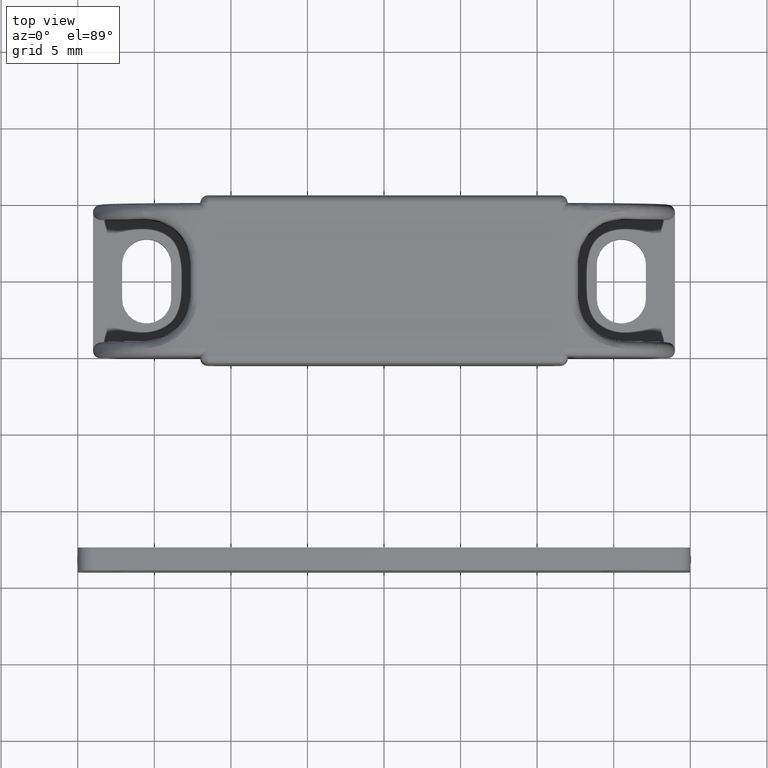
[diagram: clean part render]
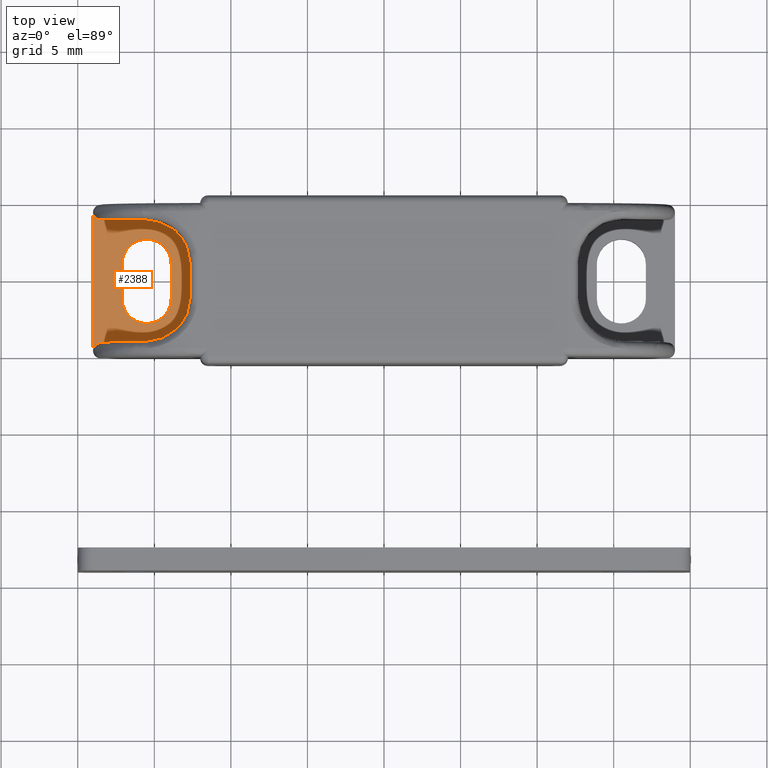
[diagram: same view with one face highlighted and labeled with its STEP entity id]
A machine part, top view. The second image highlights one B-rep face of the part: STEP entity #2388.
In plain terms, the highlighted face is a freeform B-spline surface patch.
Its self-contained STEP definition (entity closure, byte-faithful):
#1980=CARTESIAN_POINT('',(-17.100000000000001,-1.150000000006912,2.0));
#1981=VERTEX_POINT('',#1980);
#1987=CARTESIAN_POINT('',(-13.899999999999860,-1.150000000006514,2.0));
#1988=VERTEX_POINT('',#1987);
#1989=CARTESIAN_POINT('',(-17.100000000000001,-1.150000000006912,2.0));
#1990=CARTESIAN_POINT('',(-17.100000000000009,-2.073760430710401,2.000000000000000));
#1991=CARTESIAN_POINT('',(-16.299999999999880,-2.535640646062080,2.0));
#1992=CARTESIAN_POINT('',(-15.499999999999774,-2.997520861413759,2.000000000000000));
#1993=CARTESIAN_POINT('',(-14.699999999999770,-2.535640646061881,2.0));
#1994=CARTESIAN_POINT('',(-13.899999999999775,-2.073760430710004,2.000000000000000));
#1995=CARTESIAN_POINT('',(-13.899999999999860,-1.150000000006514,2.0));
#2003=(BOUNDED_CURVE()B_SPLINE_CURVE(2,(#1989,#1990,#1991,#1992,#1993,#1994,#1995),.UNSPECIFIED.,.F.,.U.)B_SPLINE_CURVE_WITH_KNOTS((3,2,2,3),(0.0,0.333333333333333,0.666666666666667,1.0),.UNSPECIFIED.)CURVE()GEOMETRIC_REPRESENTATION_ITEM()RATIONAL_B_SPLINE_CURVE((1.0,0.866025403784418,1.0,0.866025403784418,1.0,0.866025403784418,1.0))REPRESENTATION_ITEM(''));
#2004=EDGE_CURVE('',#1981,#1988,#2003,.T.);
#2027=CARTESIAN_POINT('',(-13.900000000001020,1.149999999992520,2.0));
#2028=VERTEX_POINT('',#2027);
#2029=CARTESIAN_POINT('',(-13.900000000001020,1.149999999992520,2.0));
#2030=CARTESIAN_POINT('',(-13.899999999999860,-1.150000000006514,2.0));
#2031=QUASI_UNIFORM_CURVE('',1,(#2029,#2030),.UNSPECIFIED.,.F.,.U.);
#2032=EDGE_CURVE('',#2028,#1988,#2031,.T.);
#2078=CARTESIAN_POINT('',(-17.100000000001000,1.149999999991066,2.0));
#2079=VERTEX_POINT('',#2078);
#2080=CARTESIAN_POINT('',(-13.900000000001000,1.149999999992520,2.0));
#2081=CARTESIAN_POINT('',(-13.900000000001727,2.749999999992156,2.0));
#2082=CARTESIAN_POINT('',(-15.500000000001361,2.749999999991792,2.0));
#2083=CARTESIAN_POINT('',(-17.100000000001007,2.749999999991429,2.0));
#2084=CARTESIAN_POINT('',(-17.100000000001000,1.149999999991066,2.0));
#2092=(BOUNDED_CURVE()B_SPLINE_CURVE(2,(#2080,#2081,#2082,#2083,#2084),.UNSPECIFIED.,.F.,.U.)B_SPLINE_CURVE_WITH_KNOTS((3,2,3),(0.0,0.500000000000000,1.0),.UNSPECIFIED.)CURVE()GEOMETRIC_REPRESENTATION_ITEM()RATIONAL_B_SPLINE_CURVE((1.0,0.707106781186628,1.0,0.707106781186628,1.0))REPRESENTATION_ITEM(''));
#2093=EDGE_CURVE('',#2028,#2079,#2092,.T.);
#2114=CARTESIAN_POINT('',(-17.100000000000001,-1.150000000006912,2.0));
#2115=CARTESIAN_POINT('',(-17.100000000001000,1.149999999991066,2.0));
#2116=QUASI_UNIFORM_CURVE('',1,(#2114,#2115),.UNSPECIFIED.,.F.,.U.);
#2117=EDGE_CURVE('',#1981,#2079,#2116,.T.);
#2287=CARTESIAN_POINT('',(-19.317182510378171,4.949549982556198,2.0));
#2288=CARTESIAN_POINT('',(-12.332816865133321,4.949549982556198,2.0));
#2289=CARTESIAN_POINT('',(-19.317182510378171,-4.949550223955009,2.0));
#2290=CARTESIAN_POINT('',(-12.332816865133321,-4.949550223955009,2.0));
#2291=B_SPLINE_SURFACE_WITH_KNOTS('',1,1,((#2287,#2289),(#2288,#2290)),.UNSPECIFIED.,.F.,.F.,.U.,(2,2),(2,2),(0.0,6.984365645244848),(0.0,9.899100206511207),.UNSPECIFIED.);
#2292=CARTESIAN_POINT('',(-19.0,4.499999999999949,2.0));
#2293=VERTEX_POINT('',#2292);
#2294=CARTESIAN_POINT('',(-19.0,-4.499999999999949,2.0));
#2295=VERTEX_POINT('',#2294);
#2296=CARTESIAN_POINT('',(-19.0,4.499999999999949,2.0));
#2297=CARTESIAN_POINT('',(-19.0,-4.499999999999949,2.0));
#2298=QUASI_UNIFORM_CURVE('',1,(#2296,#2297),.UNSPECIFIED.,.F.,.U.);
#2299=EDGE_CURVE('',#2293,#2295,#2298,.T.);
#2300=ORIENTED_EDGE('',*,*,#2299,.T.);
#2301=CARTESIAN_POINT('',(-18.500000000000000,-4.0,2.0));
#2302=VERTEX_POINT('',#2301);
#2303=CARTESIAN_POINT('',(-19.0,-4.499999999999949,2.0));
#2304=CARTESIAN_POINT('',(-18.999999999999993,-3.999999999999950,2.000000000000000));
#2305=CARTESIAN_POINT('',(-18.500000000000000,-3.999999999999950,2.0));
#2313=(BOUNDED_CURVE()B_SPLINE_CURVE(2,(#2303,#2304,#2305),.UNSPECIFIED.,.F.,.U.)CURVE()GEOMETRIC_REPRESENTATION_ITEM()QUASI_UNIFORM_CURVE()RATIONAL_B_SPLINE_CURVE((1.0,0.707106781186548,1.0))REPRESENTATION_ITEM(''));
#2314=EDGE_CURVE('',#2295,#2302,#2313,.T.);
#2315=ORIENTED_EDGE('',*,*,#2314,.T.);
#2316=CARTESIAN_POINT('',(-15.500000000019799,-4.0,2.0));
#2317=VERTEX_POINT('',#2316);
#2318=CARTESIAN_POINT('',(-15.500000000019799,-4.0,2.0));
#2319=CARTESIAN_POINT('',(-18.500000000000000,-4.0,2.0));
#2320=QUASI_UNIFORM_CURVE('',1,(#2318,#2319),.UNSPECIFIED.,.F.,.U.);
#2321=EDGE_CURVE('',#2317,#2302,#2320,.T.);
#2322=ORIENTED_EDGE('',*,*,#2321,.F.);
#2323=CARTESIAN_POINT('',(-12.650000000019199,-1.149999999999410,2.0));
#2324=VERTEX_POINT('',#2323);
#2325=CARTESIAN_POINT('',(-15.500000000019799,-4.000000000000030,2.0));
#2326=CARTESIAN_POINT('',(-12.650000000019181,-4.000000000000031,2.000000000000000));
#2327=CARTESIAN_POINT('',(-12.650000000019180,-1.149999999999410,2.0));
#2335=(BOUNDED_CURVE()B_SPLINE_CURVE(2,(#2325,#2326,#2327),.UNSPECIFIED.,.F.,.U.)CURVE()GEOMETRIC_REPRESENTATION_ITEM()QUASI_UNIFORM_CURVE()RATIONAL_B_SPLINE_CURVE((1.0,0.707106781186548,1.0))REPRESENTATION_ITEM(''));
#2336=EDGE_CURVE('',#2317,#2324,#2335,.T.);
#2337=ORIENTED_EDGE('',*,*,#2336,.T.);
#2338=CARTESIAN_POINT('',(-12.650000000019160,1.149999999999294,2.0));
#2339=VERTEX_POINT('',#2338);
#2340=CARTESIAN_POINT('',(-12.650000000019160,1.149999999999294,2.0));
#2341=CARTESIAN_POINT('',(-12.650000000019199,-1.149999999999410,2.0));
#2342=QUASI_UNIFORM_CURVE('',1,(#2340,#2341),.UNSPECIFIED.,.F.,.U.);
#2343=EDGE_CURVE('',#2339,#2324,#2342,.T.);
#2344=ORIENTED_EDGE('',*,*,#2343,.F.);
#2345=CARTESIAN_POINT('',(-15.500000000019799,4.0,2.0));
#2346=VERTEX_POINT('',#2345);
#2347=CARTESIAN_POINT('',(-12.650000000019180,1.149999999999294,2.0));
#2348=CARTESIAN_POINT('',(-12.650000000019181,3.999999999999915,2.000000000000000));
#2349=CARTESIAN_POINT('',(-15.500000000019799,4.0,2.0));
#2357=(BOUNDED_CURVE()B_SPLINE_CURVE(2,(#2347,#2348,#2349),.UNSPECIFIED.,.F.,.U.)CURVE()GEOMETRIC_REPRESENTATION_ITEM()QUASI_UNIFORM_CURVE()RATIONAL_B_SPLINE_CURVE((1.0,0.707106781186548,1.0))REPRESENTATION_ITEM(''));
#2358=EDGE_CURVE('',#2339,#2346,#2357,.T.);
#2359=ORIENTED_EDGE('',*,*,#2358,.T.);
#2360=CARTESIAN_POINT('',(-18.500000000000000,4.0,2.0));
#2361=VERTEX_POINT('',#2360);
#2362=CARTESIAN_POINT('',(-18.500000000000000,4.0,2.0));
#2363=CARTESIAN_POINT('',(-15.500000000019799,4.0,2.0));
#2364=QUASI_UNIFORM_CURVE('',1,(#2362,#2363),.UNSPECIFIED.,.F.,.U.);
#2365=EDGE_CURVE('',#2361,#2346,#2364,.T.);
#2366=ORIENTED_EDGE('',*,*,#2365,.F.);
#2367=CARTESIAN_POINT('',(-18.500000000000000,3.999999999999950,2.0));
#2368=CARTESIAN_POINT('',(-18.999999999999993,3.999999999999950,2.000000000000000));
#2369=CARTESIAN_POINT('',(-19.0,4.499999999999949,2.0));
#2377=(BOUNDED_CURVE()B_SPLINE_CURVE(2,(#2367,#2368,#2369),.UNSPECIFIED.,.F.,.U.)CURVE()GEOMETRIC_REPRESENTATION_ITEM()QUASI_UNIFORM_CURVE()RATIONAL_B_SPLINE_CURVE((1.0,0.707106781186548,1.0))REPRESENTATION_ITEM(''));
#2378=EDGE_CURVE('',#2361,#2293,#2377,.T.);
#2379=ORIENTED_EDGE('',*,*,#2378,.T.);
#2380=EDGE_LOOP('',(#2300,#2315,#2322,#2337,#2344,#2359,#2366,#2379));
#2381=FACE_OUTER_BOUND('',#2380,.T.);
#2382=ORIENTED_EDGE('',*,*,#2117,.T.);
#2383=ORIENTED_EDGE('',*,*,#2093,.F.);
#2384=ORIENTED_EDGE('',*,*,#2032,.T.);
#2385=ORIENTED_EDGE('',*,*,#2004,.F.);
#2386=EDGE_LOOP('',(#2382,#2383,#2384,#2385));
#2387=FACE_BOUND('',#2386,.T.);
#2388=ADVANCED_FACE('',(#2381,#2387),#2291,.F.);